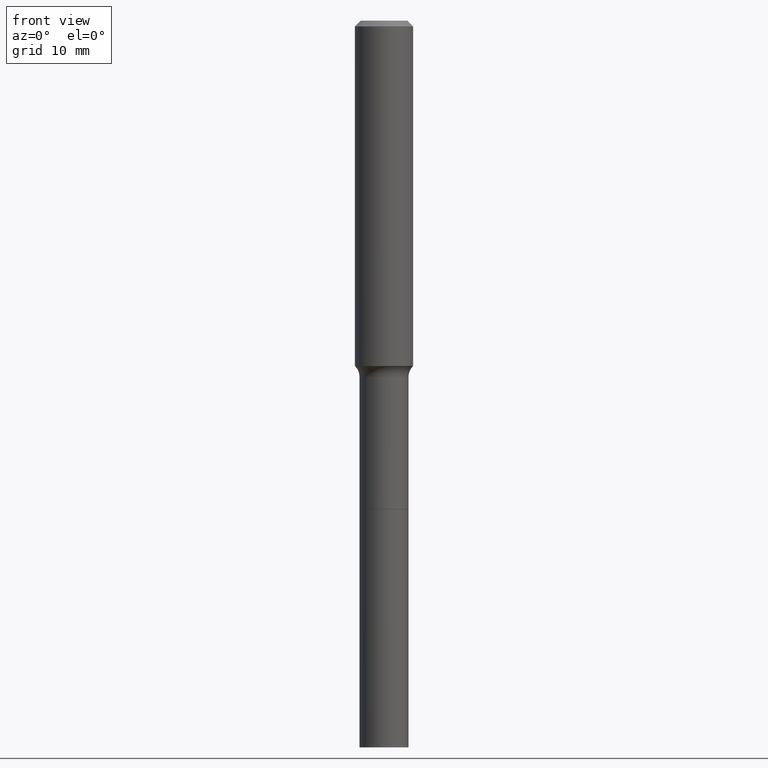
[diagram: clean part render]
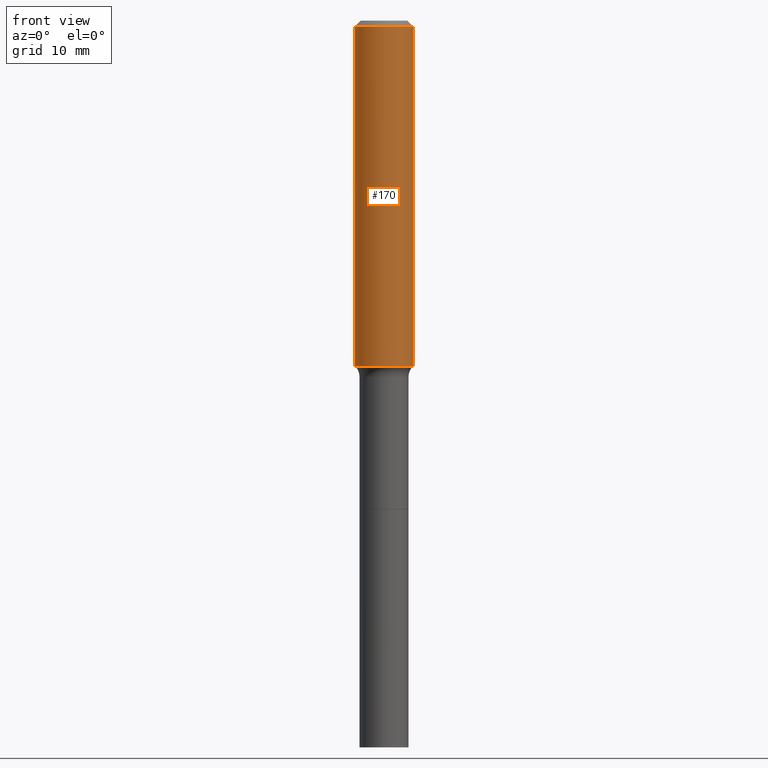
[diagram: same view with one face highlighted and labeled with its STEP entity id]
A machine part, front view. The second image highlights one B-rep face of the part: STEP entity #170.
In plain terms, the highlighted cylindrical surface (edge-blend (fillet) strip) has radius 4.0005 mm, axis along (-0, 0, 1).
Its self-contained STEP definition (entity closure, byte-faithful):
#2 = AXIS2_PLACEMENT_3D ( 'NONE', #318, #120, #84 ) ;
#6 = DIRECTION ( 'NONE',  ( 1.000000000000000000, -6.982962677686271444E-15, 0.000000000000000000 ) ) ;
#18 = CIRCLE ( 'NONE', #389, 0.1575000000000000011 ) ;
#38 = DIRECTION ( 'NONE',  ( -2.445468806185136597E-29, 3.491481338843145583E-15, 1.000000000000000000 ) ) ;
#39 = FACE_OUTER_BOUND ( 'NONE', #237, .T. ) ;
#45 = DIRECTION ( 'NONE',  ( -2.445468806185136597E-29, 3.491481338843145583E-15, 1.000000000000000000 ) ) ;
#61 = VECTOR ( 'NONE', #240, 39.37007874015748143 ) ;
#84 = DIRECTION ( 'NONE',  ( 1.000000000000000000, -6.982962677686267499E-15, 4.876176775795936353E-29 ) ) ;
#100 = LINE ( 'NONE', #466, #408 ) ;
#120 = DIRECTION ( 'NONE',  ( -2.445468806185136597E-29, 3.491481338843145583E-15, 1.000000000000000000 ) ) ;
#134 = ORIENTED_EDGE ( 'NONE', *, *, #262, .T. ) ;
#156 = CARTESIAN_POINT ( 'NONE',  ( 0.1575000000000000844, -1.099816621735587677E-15, 7.679978421878603638E-30 ) ) ;
#166 = EDGE_CURVE ( 'NONE', #365, #494, #447, .T. ) ;
#170 = ADVANCED_FACE ( 'NONE', ( #39 ), #516, .T. ) ;
#229 = CARTESIAN_POINT ( 'NONE',  ( 0.1575000000000000011, -1.209798283909146741E-15, -0.03150000000000022227 ) ) ;
#237 = EDGE_LOOP ( 'NONE', ( #492, #134, #475, #457 ) ) ;
#240 = DIRECTION ( 'NONE',  ( -2.445468806185136877E-29, 3.491481338843145188E-15, 1.000000000000000000 ) ) ;
#262 = EDGE_CURVE ( 'NONE', #460, #365, #379, .T. ) ;
#271 = CARTESIAN_POINT ( 'NONE',  ( 7.703226739483234853E-31, -1.099816621735598648E-16, -0.03150000000000022227 ) ) ;
#286 = CARTESIAN_POINT ( 'NONE',  ( 0.1575000000000002232, -7.632377001497823742E-15, -1.870999654813194413 ) ) ;
#306 = CARTESIAN_POINT ( 'NONE',  ( -0.1575000000000002232, -5.413455570940076292E-15, -1.870999654813194413 ) ) ;
#311 = EDGE_CURVE ( 'NONE', #366, #494, #18, .T. ) ;
#318 = CARTESIAN_POINT ( 'NONE',  ( 0.000000000000000000, 0.000000000000000000, 0.000000000000000000 ) ) ;
#319 = DIRECTION ( 'NONE',  ( 1.000000000000000000, -6.982962677686264344E-15, 0.000000000000000000 ) ) ;
#334 = DIRECTION ( 'NONE',  ( -2.445468806185136877E-29, 3.491481338843145188E-15, 1.000000000000000000 ) ) ;
#365 = VERTEX_POINT ( 'NONE', #286 ) ;
#366 = VERTEX_POINT ( 'NONE', #415 ) ;
#379 = CIRCLE ( 'NONE', #456, 0.1575000000000002232 ) ;
#389 = AXIS2_PLACEMENT_3D ( 'NONE', #271, #38, #319 ) ;
#408 = VECTOR ( 'NONE', #334, 39.37007874015748143 ) ;
#415 = CARTESIAN_POINT ( 'NONE',  ( -0.1575000000000000011, -2.202166212145738679E-15, -0.03150000000000022227 ) ) ;
#447 = LINE ( 'NONE', #156, #61 ) ;
#456 = AXIS2_PLACEMENT_3D ( 'NONE', #479, #45, #6 ) ;
#457 = ORIENTED_EDGE ( 'NONE', *, *, #311, .F. ) ;
#460 = VERTEX_POINT ( 'NONE', #306 ) ;
#466 = CARTESIAN_POINT ( 'NONE',  ( -0.1575000000000000844, 1.119104808822158392E-15, -7.747322767151481189E-30 ) ) ;
#475 = ORIENTED_EDGE ( 'NONE', *, *, #166, .T. ) ;
#479 = CARTESIAN_POINT ( 'NONE',  ( 4.575471292228825010E-29, -6.532560379762235473E-15, -1.870999654813194413 ) ) ;
#492 = ORIENTED_EDGE ( 'NONE', *, *, #510, .F. ) ;
#494 = VERTEX_POINT ( 'NONE', #229 ) ;
#510 = EDGE_CURVE ( 'NONE', #460, #366, #100, .T. ) ;
#516 = CYLINDRICAL_SURFACE ( 'NONE', #2, 0.1575000000000000844 ) ;